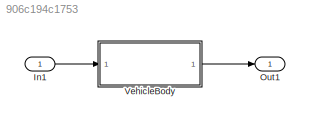
MODEL slx_906c194c1753
KIND model
CONFIG AbsTol = auto
CONFIG EnableMultiTasking = off
CONFIG FixedStep = auto
CONFIG MaxStep = auto
CONFIG MinStep = auto
CONFIG RelTol = 1e-3
CONFIG SampleTimeConstraint = Unconstrained
CONFIG SolverName = VariableStepAuto
CONFIG StartTime = 0.0
CONFIG StopTime = 10.0
BLOCK [Inport] In1
BLOCK [Outport] Out1
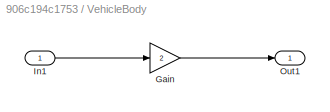
BLOCK [SubSystem] VehicleBody
BLOCK [Gain] VehicleBody/Gain
  Gain = 2
BLOCK [Inport] VehicleBody/In1
BLOCK [Outport] VehicleBody/Out1
LINE In1:1 -> VehicleBody:1
LINE VehicleBody/Gain:1 -> VehicleBody/Out1:1
LINE VehicleBody/In1:1 -> VehicleBody/Gain:1
LINE VehicleBody:1 -> Out1:1
